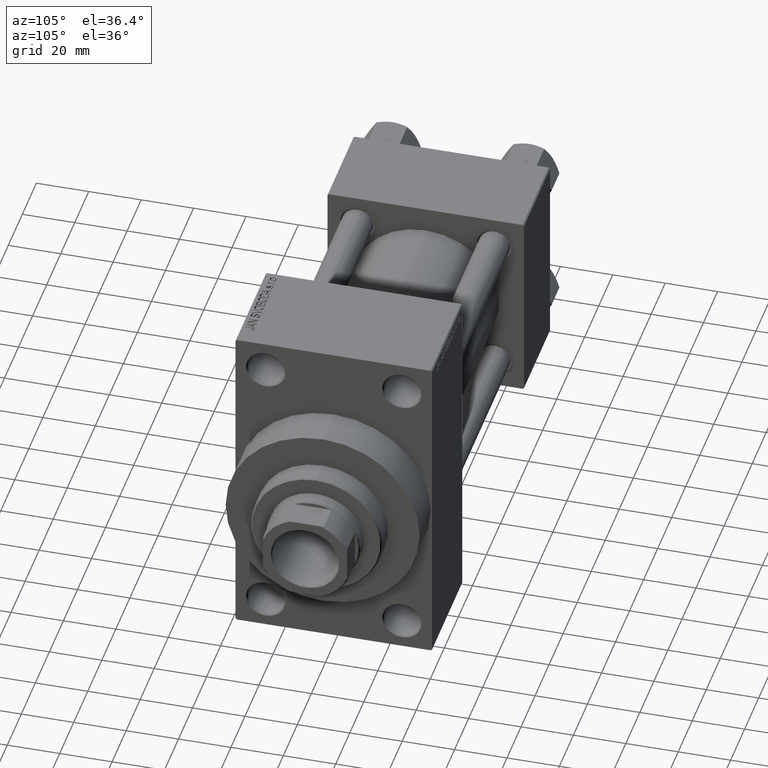
[diagram: clean part render]
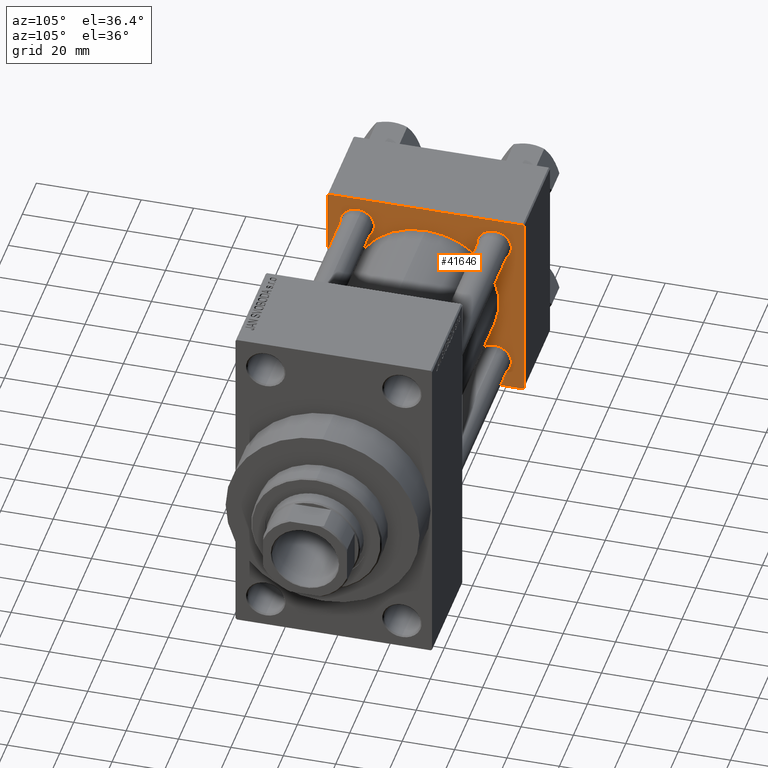
[diagram: same view with one face highlighted and labeled with its STEP entity id]
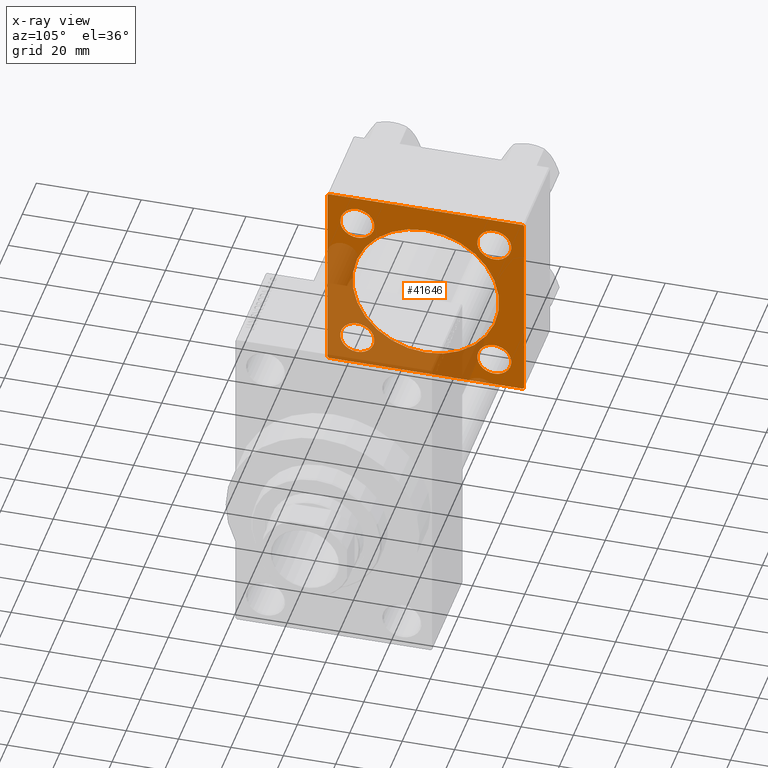
[diagram: x-ray of the same camera — body ghosted, the highlighted face saturated]
A machine part, auxiliary view. The second image highlights one B-rep face of the part: STEP entity #41646.
The next image is the same camera in x-ray: the body ghosted, the highlighted face saturated — about 40% of this face is hidden behind the body in this view.
In plain terms, the highlighted planar face has unit normal (-1, 0, 0).
Its self-contained STEP definition (entity closure, byte-faithful):
#39 = EDGE_CURVE ( 'NONE', #12357, #45025, #9186, .T. ) ;
#183 = VERTEX_POINT ( 'NONE', #3549 ) ;
#218 = DIRECTION ( 'NONE',  ( -1.000000000000000000, 0.000000000000000000, -0.000000000000000000 ) ) ;
#427 = CARTESIAN_POINT ( 'NONE',  ( 37.00000000000000000, -37.50000000000000711, 37.49999999999999289 ) ) ;
#449 = DIRECTION ( 'NONE',  ( 0.000000000000000000, 0.000000000000000000, 1.000000000000000000 ) ) ;
#636 = ORIENTED_EDGE ( 'NONE', *, *, #3285, .T. ) ;
#1538 = DIRECTION ( 'NONE',  ( -1.000000000000000000, 0.000000000000000000, -0.000000000000000000 ) ) ;
#1643 = VECTOR ( 'NONE', #11828, 1000.000000000000114 ) ;
#2024 = EDGE_CURVE ( 'NONE', #183, #43564, #11595, .T. ) ;
#2045 = AXIS2_PLACEMENT_3D ( 'NONE', #38847, #9947, #31208 ) ;
#2139 = CIRCLE ( 'NONE', #30352, 6.499999999999974243 ) ;
#2205 = EDGE_CURVE ( 'NONE', #32825, #12891, #16136, .T. ) ;
#2380 = CARTESIAN_POINT ( 'NONE',  ( 37.00000000000000000, -26.14999999999999147, 32.64999999999999147 ) ) ;
#2521 = ORIENTED_EDGE ( 'NONE', *, *, #12489, .T. ) ;
#2774 = LINE ( 'NONE', #17347, #29134 ) ;
#2847 = EDGE_CURVE ( 'NONE', #29852, #30320, #29101, .T. ) ;
#2983 = ORIENTED_EDGE ( 'NONE', *, *, #22467, .T. ) ;
#3205 = AXIS2_PLACEMENT_3D ( 'NONE', #24037, #32147, #13285 ) ;
#3226 = VERTEX_POINT ( 'NONE', #21155 ) ;
#3285 = EDGE_CURVE ( 'NONE', #22081, #24926, #2774, .T. ) ;
#3434 = CARTESIAN_POINT ( 'NONE',  ( 37.00000000000000000, 26.14999999999999858, 19.64999999999997016 ) ) ;
#3549 = CARTESIAN_POINT ( 'NONE',  ( 37.00000000000000000, -37.00000000000000711, 37.49999999999999289 ) ) ;
#3746 = CARTESIAN_POINT ( 'NONE',  ( 37.00000000000000000, -37.50000000000000711, 36.99999999999999289 ) ) ;
#3915 = ORIENTED_EDGE ( 'NONE', *, *, #2847, .T. ) ;
#4303 = FACE_BOUND ( 'NONE', #43961, .T. ) ;
#4646 = CARTESIAN_POINT ( 'NONE',  ( 37.00000000000000000, -26.14999999999999147, -26.15000000000000924 ) ) ;
#4676 = CIRCLE ( 'NONE', #19165, 28.00000000000000000 ) ;
#5239 = CIRCLE ( 'NONE', #47226, 6.500000000000037303 ) ;
#6024 = ORIENTED_EDGE ( 'NONE', *, *, #38699, .T. ) ;
#6088 = ORIENTED_EDGE ( 'NONE', *, *, #33880, .T. ) ;
#6179 = DIRECTION ( 'NONE',  ( 0.000000000000000000, 0.000000000000000000, 1.000000000000000000 ) ) ;
#6197 = CARTESIAN_POINT ( 'NONE',  ( 37.00000000000000000, 36.99999999999999289, 37.50000000000000000 ) ) ;
#6217 = AXIS2_PLACEMENT_3D ( 'NONE', #17083, #36175, #20649 ) ;
#6586 = DIRECTION ( 'NONE',  ( -1.000000000000000000, 0.000000000000000000, -0.000000000000000000 ) ) ;
#6779 = DIRECTION ( 'NONE',  ( 0.000000000000000000, 0.000000000000000000, 1.000000000000000000 ) ) ;
#6871 = DIRECTION ( 'NONE',  ( -1.000000000000000000, 0.000000000000000000, -0.000000000000000000 ) ) ;
#7234 = CARTESIAN_POINT ( 'NONE',  ( 37.00000000000000000, 26.14999999999999858, 32.65000000000004121 ) ) ;
#8213 = DIRECTION ( 'NONE',  ( 0.000000000000000000, 0.7071067811865524577, -0.7071067811865426878 ) ) ;
#9131 = CARTESIAN_POINT ( 'NONE',  ( 37.00000000000000000, -37.50000000000000711, 36.99999999999999289 ) ) ;
#9186 = CIRCLE ( 'NONE', #29033, 28.00000000000000000 ) ;
#9947 = DIRECTION ( 'NONE',  ( -1.000000000000000000, 0.000000000000000000, -0.000000000000000000 ) ) ;
#10103 = VERTEX_POINT ( 'NONE', #3434 ) ;
#10181 = DIRECTION ( 'NONE',  ( -0.000000000000000000, 0.7071067811865474617, 0.7071067811865474617 ) ) ;
#11050 = CARTESIAN_POINT ( 'NONE',  ( 37.00000000000000711, -2.602085213965210642E-15, 28.00000000000000000 ) ) ;
#11187 = CARTESIAN_POINT ( 'NONE',  ( 37.00000000000000000, -26.14999999999999147, -26.15000000000000924 ) ) ;
#11459 = FACE_BOUND ( 'NONE', #20075, .T. ) ;
#11595 = LINE ( 'NONE', #3746, #1643 ) ;
#11693 = FACE_BOUND ( 'NONE', #44641, .T. ) ;
#11828 = DIRECTION ( 'NONE',  ( -0.000000000000000000, -0.7071067811865474617, -0.7071067811865474617 ) ) ;
#12139 = EDGE_CURVE ( 'NONE', #12343, #24926, #38953, .T. ) ;
#12151 = ORIENTED_EDGE ( 'NONE', *, *, #41090, .T. ) ;
#12157 = DIRECTION ( 'NONE',  ( -0.000000000000000000, 0.000000000000000000, 1.000000000000000000 ) ) ;
#12343 = VERTEX_POINT ( 'NONE', #24051 ) ;
#12357 = VERTEX_POINT ( 'NONE', #17361 ) ;
#12489 = EDGE_CURVE ( 'NONE', #40743, #3226, #38464, .T. ) ;
#12609 = VERTEX_POINT ( 'NONE', #17066 ) ;
#12644 = ORIENTED_EDGE ( 'NONE', *, *, #16145, .T. ) ;
#12891 = VERTEX_POINT ( 'NONE', #38252 ) ;
#12909 = CARTESIAN_POINT ( 'NONE',  ( 37.00000000000000000, -26.14999999999999147, -32.64999999999998437 ) ) ;
#13285 = DIRECTION ( 'NONE',  ( 0.000000000000000000, 0.000000000000000000, 1.000000000000000000 ) ) ;
#13378 = LINE ( 'NONE', #35100, #25995 ) ;
#13735 = DIRECTION ( 'NONE',  ( 0.000000000000000000, 0.000000000000000000, 1.000000000000000000 ) ) ;
#14062 = DIRECTION ( 'NONE',  ( 1.000000000000000000, -0.000000000000000000, 0.000000000000000000 ) ) ;
#14066 = AXIS2_PLACEMENT_3D ( 'NONE', #4646, #1538, #40949 ) ;
#14299 = CARTESIAN_POINT ( 'NONE',  ( 37.00000000000000711, -2.602085213965210642E-15, 0.000000000000000000 ) ) ;
#14736 = ORIENTED_EDGE ( 'NONE', *, *, #20375, .T. ) ;
#15051 = FACE_OUTER_BOUND ( 'NONE', #20427, .T. ) ;
#15512 = FACE_BOUND ( 'NONE', #46367, .T. ) ;
#16136 = CIRCLE ( 'NONE', #6217, 6.500000000000030198 ) ;
#16145 = EDGE_CURVE ( 'NONE', #43564, #12609, #37651, .T. ) ;
#16867 = CARTESIAN_POINT ( 'NONE',  ( 37.00000000000000000, 36.99999999999999289, 37.50000000000000000 ) ) ;
#16972 = AXIS2_PLACEMENT_3D ( 'NONE', #26723, #30316, #12157 ) ;
#17066 = CARTESIAN_POINT ( 'NONE',  ( 37.00000000000000000, -37.50000000000000000, -37.00000000000003553 ) ) ;
#17083 = CARTESIAN_POINT ( 'NONE',  ( 37.00000000000000000, 26.14999999999999858, -26.15000000000000213 ) ) ;
#17220 = CARTESIAN_POINT ( 'NONE',  ( 37.00000000000000000, 36.99999999999997868, -37.50000000000000000 ) ) ;
#17242 = ORIENTED_EDGE ( 'NONE', *, *, #12139, .F. ) ;
#17347 = CARTESIAN_POINT ( 'NONE',  ( 37.00000000000000000, 37.49999999999999289, -36.99999999999998579 ) ) ;
#17361 = CARTESIAN_POINT ( 'NONE',  ( 37.00000000000000711, 8.269258236473784371E-16, -28.00000000000000000 ) ) ;
#18491 = ORIENTED_EDGE ( 'NONE', *, *, #24249, .T. ) ;
#19103 = CIRCLE ( 'NONE', #36672, 6.499999999999981348 ) ;
#19165 = AXIS2_PLACEMENT_3D ( 'NONE', #24960, #21851, #13735 ) ;
#19175 = LINE ( 'NONE', #44710, #36877 ) ;
#19247 = ORIENTED_EDGE ( 'NONE', *, *, #27311, .T. ) ;
#20075 = EDGE_LOOP ( 'NONE', ( #6088, #3915 ) ) ;
#20214 = DIRECTION ( 'NONE',  ( 0.000000000000000000, -0.7071067811865474617, 0.7071067811865474617 ) ) ;
#20375 = EDGE_CURVE ( 'NONE', #45026, #10103, #5239, .T. ) ;
#20427 = EDGE_LOOP ( 'NONE', ( #31806, #636, #17242, #12151, #6024, #21832, #12644, #2983 ) ) ;
#20649 = DIRECTION ( 'NONE',  ( 0.000000000000000000, 0.000000000000000000, 1.000000000000000000 ) ) ;
#20760 = VERTEX_POINT ( 'NONE', #6197 ) ;
#21155 = CARTESIAN_POINT ( 'NONE',  ( 37.00000000000000000, -26.14999999999999147, -19.65000000000003411 ) ) ;
#21832 = ORIENTED_EDGE ( 'NONE', *, *, #2024, .T. ) ;
#21851 = DIRECTION ( 'NONE',  ( 1.000000000000000000, -0.000000000000000000, 0.000000000000000000 ) ) ;
#22081 = VERTEX_POINT ( 'NONE', #17220 ) ;
#22467 = EDGE_CURVE ( 'NONE', #12609, #32477, #22794, .T. ) ;
#22469 = FACE_BOUND ( 'NONE', #37159, .T. ) ;
#22635 = CIRCLE ( 'NONE', #2045, 6.500000000000037303 ) ;
#22794 = LINE ( 'NONE', #32613, #31845 ) ;
#23191 = VECTOR ( 'NONE', #27981, 1000.000000000000000 ) ;
#23522 = ORIENTED_EDGE ( 'NONE', *, *, #39439, .F. ) ;
#24037 = CARTESIAN_POINT ( 'NONE',  ( 37.00000000000000000, 26.14999999999999858, -26.15000000000000213 ) ) ;
#24051 = CARTESIAN_POINT ( 'NONE',  ( 37.00000000000000000, 37.49999999999999289, 37.00000000000000000 ) ) ;
#24249 = EDGE_CURVE ( 'NONE', #10103, #45026, #22635, .T. ) ;
#24419 = CARTESIAN_POINT ( 'NONE',  ( 37.00000000000000000, -37.00000000000002132, -37.50000000000000711 ) ) ;
#24926 = VERTEX_POINT ( 'NONE', #45133 ) ;
#24960 = CARTESIAN_POINT ( 'NONE',  ( 37.00000000000000711, -2.602085213965210642E-15, 0.000000000000000000 ) ) ;
#25445 = DIRECTION ( 'NONE',  ( 0.000000000000000000, 0.000000000000000000, 1.000000000000000000 ) ) ;
#25995 = VECTOR ( 'NONE', #46560, 1000.000000000000000 ) ;
#26723 = CARTESIAN_POINT ( 'NONE',  ( 37.00000000000000000, 0.000000000000000000, 0.000000000000000000 ) ) ;
#26901 = DIRECTION ( 'NONE',  ( 0.000000000000000000, 9.251858538542971581E-17, -1.000000000000000000 ) ) ;
#27141 = VECTOR ( 'NONE', #26901, 1000.000000000000000 ) ;
#27311 = EDGE_CURVE ( 'NONE', #3226, #40743, #2139, .T. ) ;
#27981 = DIRECTION ( 'NONE',  ( 0.000000000000000000, 0.000000000000000000, -1.000000000000000000 ) ) ;
#28618 = CARTESIAN_POINT ( 'NONE',  ( 37.00000000000000000, -26.14999999999999147, 26.15000000000000924 ) ) ;
#28796 = CARTESIAN_POINT ( 'NONE',  ( 37.00000000000000000, -26.14999999999999147, 26.15000000000000924 ) ) ;
#29033 = AXIS2_PLACEMENT_3D ( 'NONE', #14299, #14062, #6179 ) ;
#29101 = CIRCLE ( 'NONE', #32917, 6.499999999999981348 ) ;
#29134 = VECTOR ( 'NONE', #10181, 1000.000000000000114 ) ;
#29852 = VERTEX_POINT ( 'NONE', #2380 ) ;
#30316 = DIRECTION ( 'NONE',  ( -1.000000000000000000, 0.000000000000000000, -0.000000000000000000 ) ) ;
#30320 = VERTEX_POINT ( 'NONE', #36157 ) ;
#30352 = AXIS2_PLACEMENT_3D ( 'NONE', #11187, #218, #449 ) ;
#31050 = CARTESIAN_POINT ( 'NONE',  ( 37.00000000000000000, 26.14999999999999858, -32.65000000000003411 ) ) ;
#31208 = DIRECTION ( 'NONE',  ( 0.000000000000000000, 0.000000000000000000, 1.000000000000000000 ) ) ;
#31806 = ORIENTED_EDGE ( 'NONE', *, *, #43450, .F. ) ;
#31845 = VECTOR ( 'NONE', #8213, 1000.000000000000000 ) ;
#31901 = LINE ( 'NONE', #16867, #39805 ) ;
#32147 = DIRECTION ( 'NONE',  ( -1.000000000000000000, 0.000000000000000000, -0.000000000000000000 ) ) ;
#32477 = VERTEX_POINT ( 'NONE', #24419 ) ;
#32613 = CARTESIAN_POINT ( 'NONE',  ( 37.00000000000000000, -37.00000000000002132, -37.50000000000000711 ) ) ;
#32825 = VERTEX_POINT ( 'NONE', #31050 ) ;
#32917 = AXIS2_PLACEMENT_3D ( 'NONE', #28618, #6871, #42700 ) ;
#33040 = CARTESIAN_POINT ( 'NONE',  ( 37.00000000000000000, 26.14999999999999858, 26.15000000000000213 ) ) ;
#33283 = ORIENTED_EDGE ( 'NONE', *, *, #39, .F. ) ;
#33570 = ORIENTED_EDGE ( 'NONE', *, *, #2205, .T. ) ;
#33880 = EDGE_CURVE ( 'NONE', #30320, #29852, #19103, .T. ) ;
#35100 = CARTESIAN_POINT ( 'NONE',  ( 37.00000000000000000, 37.49999999999999289, 37.50000000000000000 ) ) ;
#36157 = CARTESIAN_POINT ( 'NONE',  ( 37.00000000000000000, -26.14999999999999147, 19.65000000000002700 ) ) ;
#36175 = DIRECTION ( 'NONE',  ( -1.000000000000000000, 0.000000000000000000, -0.000000000000000000 ) ) ;
#36672 = AXIS2_PLACEMENT_3D ( 'NONE', #28796, #6586, #25445 ) ;
#36868 = DIRECTION ( 'NONE',  ( 0.000000000000000000, -1.000000000000000000, -9.251858538542972814E-17 ) ) ;
#36877 = VECTOR ( 'NONE', #36868, 1000.000000000000000 ) ;
#37085 = EDGE_CURVE ( 'NONE', #12891, #32825, #44365, .T. ) ;
#37159 = EDGE_LOOP ( 'NONE', ( #33570, #43280 ) ) ;
#37651 = LINE ( 'NONE', #427, #27141 ) ;
#38252 = CARTESIAN_POINT ( 'NONE',  ( 37.00000000000000000, 26.14999999999999858, -19.64999999999997371 ) ) ;
#38464 = CIRCLE ( 'NONE', #14066, 6.499999999999974243 ) ;
#38699 = EDGE_CURVE ( 'NONE', #20760, #183, #13378, .T. ) ;
#38847 = CARTESIAN_POINT ( 'NONE',  ( 37.00000000000000000, 26.14999999999999858, 26.15000000000000213 ) ) ;
#38953 = LINE ( 'NONE', #40081, #23191 ) ;
#39439 = EDGE_CURVE ( 'NONE', #45025, #12357, #4676, .T. ) ;
#39805 = VECTOR ( 'NONE', #20214, 1000.000000000000114 ) ;
#40081 = CARTESIAN_POINT ( 'NONE',  ( 37.00000000000000000, 37.49999999999999289, 37.50000000000000000 ) ) ;
#40743 = VERTEX_POINT ( 'NONE', #12909 ) ;
#40949 = DIRECTION ( 'NONE',  ( 0.000000000000000000, 0.000000000000000000, 1.000000000000000000 ) ) ;
#41090 = EDGE_CURVE ( 'NONE', #12343, #20760, #31901, .T. ) ;
#41646 = ADVANCED_FACE ( 'NONE', ( #15512, #22469, #11459, #11693, #4303, #15051 ), #44639, .F. ) ;
#42700 = DIRECTION ( 'NONE',  ( 0.000000000000000000, 0.000000000000000000, 1.000000000000000000 ) ) ;
#43280 = ORIENTED_EDGE ( 'NONE', *, *, #37085, .T. ) ;
#43450 = EDGE_CURVE ( 'NONE', #22081, #32477, #19175, .T. ) ;
#43547 = DIRECTION ( 'NONE',  ( -1.000000000000000000, 0.000000000000000000, -0.000000000000000000 ) ) ;
#43564 = VERTEX_POINT ( 'NONE', #9131 ) ;
#43961 = EDGE_LOOP ( 'NONE', ( #23522, #33283 ) ) ;
#44365 = CIRCLE ( 'NONE', #3205, 6.500000000000030198 ) ;
#44639 = PLANE ( 'NONE',  #16972 ) ;
#44641 = EDGE_LOOP ( 'NONE', ( #18491, #14736 ) ) ;
#44710 = CARTESIAN_POINT ( 'NONE',  ( 37.00000000000000000, 37.49999999999999289, -37.50000000000000000 ) ) ;
#45025 = VERTEX_POINT ( 'NONE', #11050 ) ;
#45026 = VERTEX_POINT ( 'NONE', #7234 ) ;
#45133 = CARTESIAN_POINT ( 'NONE',  ( 37.00000000000000000, 37.49999999999999289, -36.99999999999998579 ) ) ;
#46367 = EDGE_LOOP ( 'NONE', ( #2521, #19247 ) ) ;
#46560 = DIRECTION ( 'NONE',  ( 0.000000000000000000, -1.000000000000000000, -9.251858538542971581E-17 ) ) ;
#47226 = AXIS2_PLACEMENT_3D ( 'NONE', #33040, #43547, #6779 ) ;